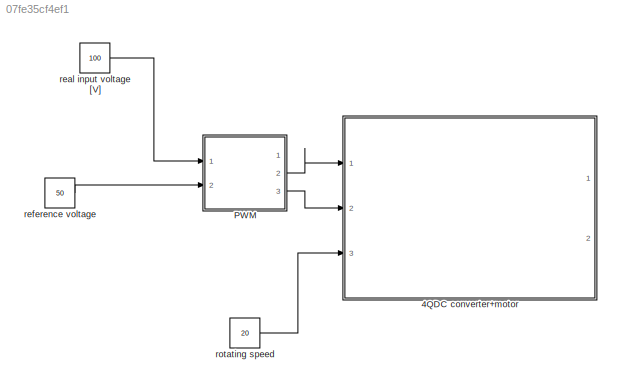
MODEL slx_07fe35cf4ef1
KIND model
CONFIG AbsTol = auto
CONFIG EnableMultiTasking = off
CONFIG FixedStep = auto
CONFIG MaxStep = 1e-5
CONFIG MinStep = auto
CONFIG RelTol = 1e-3
CONFIG SampleTimeConstraint = Unconstrained
CONFIG SolverName = VariableStepAuto
CONFIG StartTime = 0.0
CONFIG StopTime = 10.0
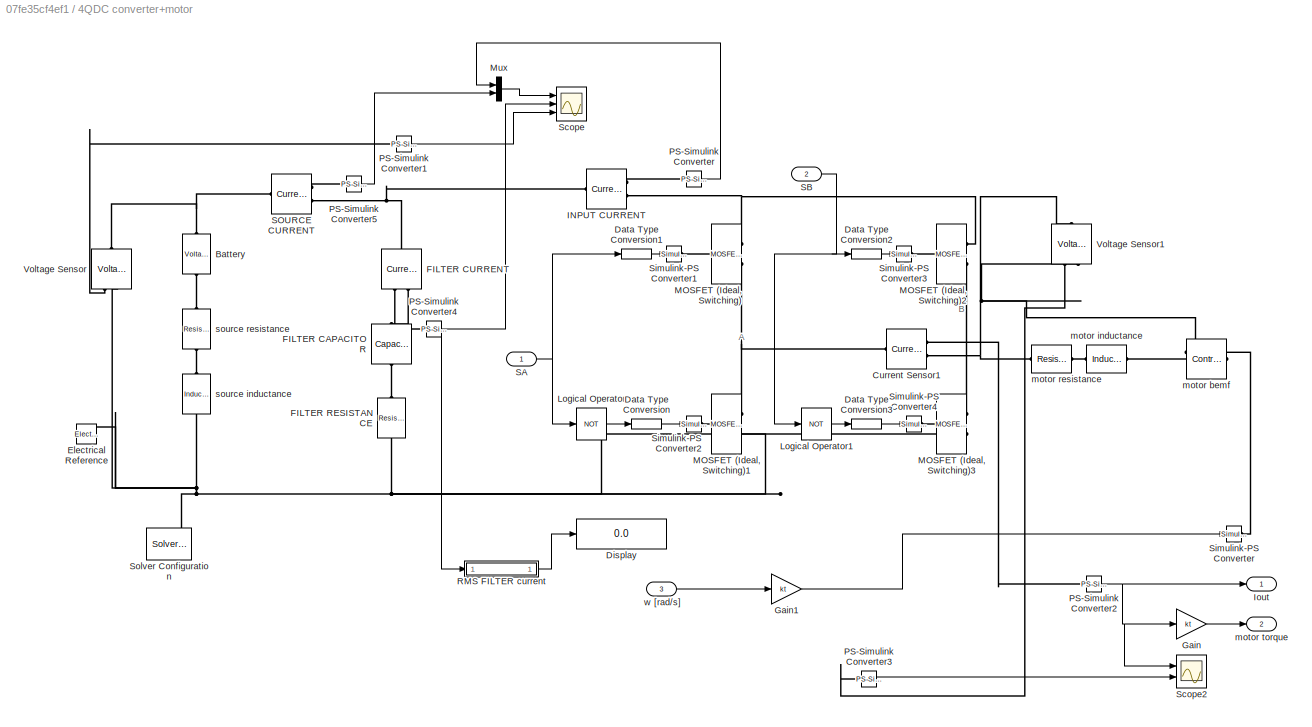
BLOCK [SubSystem] 4QDC converter+motor
  Ports = [3, 2]
  RequestExecContextInheritance = off
BLOCK [Reference] 4QDC converter+motor/Battery  REF=ee_lib/Sources/Voltage Source
  NameLocation = right
  Ports = [0, 0, 0, 0, 0, 1, 1]
  SourceBlock = ee_lib/Sources/Voltage Source
  SourceProductBaseCode = PS
  SourceType = Voltage Source
BLOCK [Reference] 4QDC converter+motor/Current Sensor1  REF=fl_lib/Electrical/Electrical Sensors/Current Sensor
  Ports = [0, 0, 0, 0, 0, 1, 2]
  SourceBlock = fl_lib/Electrical/Electrical Sensors/Current Sensor
  SourceProductBaseCode = SS
  SourceType = Current Sensor
BLOCK [DataTypeConversion] 4QDC converter+motor/Data Type Conversion
  RndMeth = Floor
  SaturateOnIntegerOverflow = off
BLOCK [DataTypeConversion] 4QDC converter+motor/Data Type Conversion1
  RndMeth = Floor
  SaturateOnIntegerOverflow = off
BLOCK [DataTypeConversion] 4QDC converter+motor/Data Type Conversion2
  RndMeth = Floor
  SaturateOnIntegerOverflow = off
BLOCK [DataTypeConversion] 4QDC converter+motor/Data Type Conversion3
  RndMeth = Floor
  SaturateOnIntegerOverflow = off
BLOCK [Display] 4QDC converter+motor/Display
  Decimation = 1
  Ports = [1]
BLOCK [Reference] 4QDC converter+motor/Electrical Reference  REF=fl_lib/Electrical/Electrical Elements/Electrical Reference
  NameLocation = right
  Ports = [0, 0, 0, 0, 0, 1]
  SourceBlock = fl_lib/Electrical/Electrical Elements/Electrical Reference
  SourceProductBaseCode = SS
  SourceType = Electrical Reference
BLOCK [Reference] 4QDC converter+motor/FILTER CAPACITOR  REF=ee_lib/Passive/Capacitor
  NameLocation = left
  Ports = [0, 0, 0, 0, 0, 1, 1]
  SourceBlock = ee_lib/Passive/Capacitor
  SourceProductBaseCode = PS
  SourceType = Capacitor
BLOCK [Reference] 4QDC converter+motor/FILTER CURRENT  REF=fl_lib/Electrical/Electrical Sensors/Current Sensor
  NameLocation = left
  Ports = [0, 0, 0, 0, 0, 1, 2]
  SourceBlock = fl_lib/Electrical/Electrical Sensors/Current Sensor
  SourceProductBaseCode = SS
  SourceType = Current Sensor
BLOCK [Reference] 4QDC converter+motor/FILTER RESISTANCE  REF=ee_lib/Passive/Resistor
  NameLocation = left
  Ports = [0, 0, 0, 0, 0, 1, 1]
  SourceBlock = ee_lib/Passive/Resistor
  SourceProductBaseCode = PS
  SourceType = Resistor
BLOCK [Gain] 4QDC converter+motor/Gain
  Gain = kt
BLOCK [Gain] 4QDC converter+motor/Gain1
  Gain = kt
BLOCK [Reference] 4QDC converter+motor/INPUT CURRENT  REF=fl_lib/Electrical/Electrical Sensors/Current Sensor
  Ports = [0, 0, 0, 0, 0, 1, 2]
  SourceBlock = fl_lib/Electrical/Electrical Sensors/Current Sensor
  SourceProductBaseCode = SS
  SourceType = Current Sensor
BLOCK [Outport] 4QDC converter+motor/Iout
BLOCK [Logic] 4QDC converter+motor/Logical Operator
  AllPortsSameDT = off
  Operator = NOT
  OutDataTypeStr = boolean
  Ports = [1, 1]
BLOCK [Logic] 4QDC converter+motor/Logical Operator1
  AllPortsSameDT = off
  Operator = NOT
  OutDataTypeStr = boolean
  Ports = [1, 1]
BLOCK [Reference] 4QDC converter+motor/MOSFET (Ideal, Switching)  REF=ee_lib/Semiconductors &
Converters/MOSFET
(Ideal,
Switching)
  Ports = [0, 0, 0, 0, 0, 1, 2]
  SourceBlock = ee_lib/Semiconductors &\nConverters/MOSFET\n(Ideal,\nSwitching)
  SourceProductBaseCode = PS
  SourceType = MOSFET\n(Ideal,\nSwitching)
BLOCK [Reference] 4QDC converter+motor/MOSFET (Ideal, Switching)1  REF=ee_lib/Semiconductors &
Converters/MOSFET
(Ideal,
Switching)
  Ports = [0, 0, 0, 0, 0, 1, 2]
  SourceBlock = ee_lib/Semiconductors &\nConverters/MOSFET\n(Ideal,\nSwitching)
  SourceProductBaseCode = PS
  SourceType = MOSFET\n(Ideal,\nSwitching)
BLOCK [Reference] 4QDC converter+motor/MOSFET (Ideal, Switching)2  REF=ee_lib/Semiconductors &
Converters/MOSFET
(Ideal,
Switching)
  Ports = [0, 0, 0, 0, 0, 1, 2]
  SourceBlock = ee_lib/Semiconductors &\nConverters/MOSFET\n(Ideal,\nSwitching)
  SourceProductBaseCode = PS
  SourceType = MOSFET\n(Ideal,\nSwitching)
BLOCK [Reference] 4QDC converter+motor/MOSFET (Ideal, Switching)3  REF=ee_lib/Semiconductors &
Converters/MOSFET
(Ideal,
Switching)
  Ports = [0, 0, 0, 0, 0, 1, 2]
  SourceBlock = ee_lib/Semiconductors &\nConverters/MOSFET\n(Ideal,\nSwitching)
  SourceProductBaseCode = PS
  SourceType = MOSFET\n(Ideal,\nSwitching)
BLOCK [Mux] 4QDC converter+motor/Mux
  DisplayOption = bar
  Inputs = 2
  Ports = [2, 1]
BLOCK [Reference] 4QDC converter+motor/PS-Simulink Converter  REF=nesl_utility/PS-Simulink
Converter
  Ports = [0, 1, 0, 0, 0, 1]
  SourceBlock = nesl_utility/PS-Simulink\nConverter
  SourceProductBaseCode = PW,SS
  SourceType = PS-Simulink\nConverter
BLOCK [Reference] 4QDC converter+motor/PS-Simulink Converter1  REF=nesl_utility/PS-Simulink
Converter
  Ports = [0, 1, 0, 0, 0, 1]
  SourceBlock = nesl_utility/PS-Simulink\nConverter
  SourceProductBaseCode = PW,SS
  SourceType = PS-Simulink\nConverter
BLOCK [Reference] 4QDC converter+motor/PS-Simulink Converter2  REF=nesl_utility/PS-Simulink
Converter
  Ports = [0, 1, 0, 0, 0, 1]
  SourceBlock = nesl_utility/PS-Simulink\nConverter
  SourceProductBaseCode = PW,SS
  SourceType = PS-Simulink\nConverter
BLOCK [Reference] 4QDC converter+motor/PS-Simulink Converter3  REF=nesl_utility/PS-Simulink
Converter
  Ports = [0, 1, 0, 0, 0, 1]
  SourceBlock = nesl_utility/PS-Simulink\nConverter
  SourceProductBaseCode = PW,SS
  SourceType = PS-Simulink\nConverter
BLOCK [Reference] 4QDC converter+motor/PS-Simulink Converter4  REF=nesl_utility/PS-Simulink
Converter
  Ports = [0, 1, 0, 0, 0, 1]
  SourceBlock = nesl_utility/PS-Simulink\nConverter
  SourceProductBaseCode = PW,SS
  SourceType = PS-Simulink\nConverter
BLOCK [Reference] 4QDC converter+motor/PS-Simulink Converter5  REF=nesl_utility/PS-Simulink
Converter
  Ports = [0, 1, 0, 0, 0, 1]
  SourceBlock = nesl_utility/PS-Simulink\nConverter
  SourceProductBaseCode = PW,SS
  SourceType = PS-Simulink\nConverter
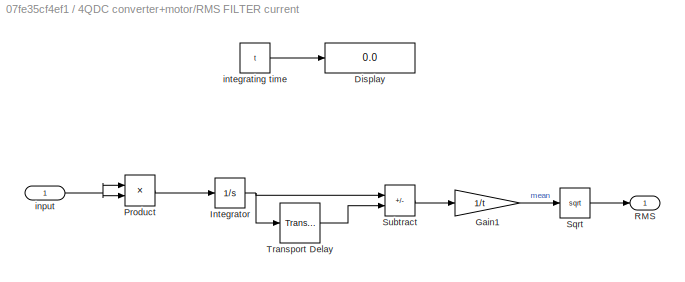
BLOCK [SubSystem] 4QDC converter+motor/RMS FILTER current
  Ports = [1, 1]
  RequestExecContextInheritance = off
BLOCK [Display] 4QDC converter+motor/RMS FILTER current/Display
  Decimation = 1
  Ports = [1]
BLOCK [Gain] 4QDC converter+motor/RMS FILTER current/Gain1
  Gain = 1/t
BLOCK [Integrator] 4QDC converter+motor/RMS FILTER current/Integrator
  Ports = [1, 1]
BLOCK [Product] 4QDC converter+motor/RMS FILTER current/Product
  Ports = [2, 1]
BLOCK [Outport] 4QDC converter+motor/RMS FILTER current/RMS
BLOCK [Sqrt] 4QDC converter+motor/RMS FILTER current/Sqrt
BLOCK [Sum] 4QDC converter+motor/RMS FILTER current/Subtract
  IconShape = rectangular
  Inputs = +-
  Ports = [2, 1]
BLOCK [TransportDelay] 4QDC converter+motor/RMS FILTER current/Transport Delay
  DelayTime = t
  Ports = [1, 1]
BLOCK [Inport] 4QDC converter+motor/RMS FILTER current/input
BLOCK [Constant] 4QDC converter+motor/RMS FILTER current/integrating time
  Value = t
BLOCK [Inport] 4QDC converter+motor/SA
BLOCK [Inport] 4QDC converter+motor/SB
  Port = 2
BLOCK [Reference] 4QDC converter+motor/SOURCE CURRENT  REF=fl_lib/Electrical/Electrical Sensors/Current Sensor
  Ports = [0, 0, 0, 0, 0, 1, 2]
  SourceBlock = fl_lib/Electrical/Electrical Sensors/Current Sensor
  SourceProductBaseCode = SS
  SourceType = Current Sensor
BLOCK [Scope] 4QDC converter+motor/Scope
  Floating = off
  NumInputPorts = 3
  Ports = [3]
  ScopeSpecificationString = Simulink.scopes.TimeScopeBlockCfg('CurrentConfiguration', extmgr.ConfigurationSet(extmgr.Configuration('Core','General UI',true),extmgr.Configuration('Core','Source UI',true),extmgr.Configuration('Sources','WiredSimulink',true),extmgr.Configuration('Visuals','Time Domain',true,'SerializedDisplays',{struct('MinYLimReal','-15.70103','MaxYLimReal','15.70115','YLabelReal','[A]','MinYLimMag','0.00000',...<+3146ch>
BLOCK [Scope] 4QDC converter+motor/Scope2
  Floating = off
  NumInputPorts = 2
  Ports = [2]
  ScopeSpecificationString = Simulink.scopes.TimeScopeBlockCfg('CurrentConfiguration', extmgr.ConfigurationSet(extmgr.Configuration('Core','General UI',true),extmgr.Configuration('Core','Source UI',true),extmgr.Configuration('Sources','WiredSimulink',true,'DataLoggingVariableName','ScopeData2'),extmgr.Configuration('Visuals','Time Domain',true,'SerializedDisplays',{struct('MinYLimReal','-9.5882','MaxYLimReal','19.99219','YLab...<+2182ch>
BLOCK [Reference] 4QDC converter+motor/Simulink-PS Converter  REF=nesl_utility/Simulink-PS
Converter
  Ports = [1, 0, 0, 0, 0, 0, 1]
  SourceBlock = nesl_utility/Simulink-PS\nConverter
  SourceProductBaseCode = PW,SS
  SourceType = Simulink-PS\nConverter
BLOCK [Reference] 4QDC converter+motor/Simulink-PS Converter1  REF=nesl_utility/Simulink-PS
Converter
  Ports = [1, 0, 0, 0, 0, 0, 1]
  SourceBlock = nesl_utility/Simulink-PS\nConverter
  SourceProductBaseCode = PW,SS
  SourceType = Simulink-PS\nConverter
BLOCK [Reference] 4QDC converter+motor/Simulink-PS Converter2  REF=nesl_utility/Simulink-PS
Converter
  Ports = [1, 0, 0, 0, 0, 0, 1]
  SourceBlock = nesl_utility/Simulink-PS\nConverter
  SourceProductBaseCode = PW,SS
  SourceType = Simulink-PS\nConverter
BLOCK [Reference] 4QDC converter+motor/Simulink-PS Converter3  REF=nesl_utility/Simulink-PS
Converter
  Ports = [1, 0, 0, 0, 0, 0, 1]
  SourceBlock = nesl_utility/Simulink-PS\nConverter
  SourceProductBaseCode = PW,SS
  SourceType = Simulink-PS\nConverter
BLOCK [Reference] 4QDC converter+motor/Simulink-PS Converter4  REF=nesl_utility/Simulink-PS
Converter
  Ports = [1, 0, 0, 0, 0, 0, 1]
  SourceBlock = nesl_utility/Simulink-PS\nConverter
  SourceProductBaseCode = PW,SS
  SourceType = Simulink-PS\nConverter
BLOCK [Reference] 4QDC converter+motor/Solver Configuration  REF=nesl_utility/Solver
Configuration
  Ports = [0, 0, 0, 0, 0, 0, 1]
  SourceBlock = nesl_utility/Solver\nConfiguration
  SourceProductBaseCode = PW,SS
  SourceType = Solver\nConfiguration
BLOCK [Reference] 4QDC converter+motor/Voltage Sensor  REF=fl_lib/Electrical/Electrical Sensors/Voltage Sensor
  NameLocation = right
  Ports = [0, 0, 0, 0, 0, 1, 2]
  SourceBlock = fl_lib/Electrical/Electrical Sensors/Voltage Sensor
  SourceProductBaseCode = SS
  SourceType = Voltage Sensor
BLOCK [Reference] 4QDC converter+motor/Voltage Sensor1  REF=fl_lib/Electrical/Electrical Sensors/Voltage Sensor
  NameLocation = right
  Ports = [0, 0, 0, 0, 0, 1, 2]
  SourceBlock = fl_lib/Electrical/Electrical Sensors/Voltage Sensor
  SourceProductBaseCode = SS
  SourceType = Voltage Sensor
BLOCK [Reference] 4QDC converter+motor/motor bemf  REF=fl_lib/Electrical/Electrical Sources/Controlled Voltage
Source
  Ports = [0, 0, 0, 0, 0, 1, 2]
  SourceBlock = fl_lib/Electrical/Electrical Sources/Controlled Voltage\nSource
  SourceProductBaseCode = SS
  SourceType = Controlled Voltage\nSource
BLOCK [Reference] 4QDC converter+motor/motor inductance  REF=ee_lib/Passive/Inductor
  Ports = [0, 0, 0, 0, 0, 1, 1]
  SourceBlock = ee_lib/Passive/Inductor
  SourceProductBaseCode = PS
  SourceType = Inductor
BLOCK [Reference] 4QDC converter+motor/motor resistance   REF=ee_lib/Passive/Resistor
  Ports = [0, 0, 0, 0, 0, 1, 1]
  SourceBlock = ee_lib/Passive/Resistor
  SourceProductBaseCode = PS
  SourceType = Resistor
BLOCK [Outport] 4QDC converter+motor/motor torque
  Port = 2
BLOCK [Reference] 4QDC converter+motor/source inductance  REF=ee_lib/Passive/Inductor
  NameLocation = left
  Ports = [0, 0, 0, 0, 0, 1, 1]
  SourceBlock = ee_lib/Passive/Inductor
  SourceProductBaseCode = PS
  SourceType = Inductor
BLOCK [Reference] 4QDC converter+motor/source resistance  REF=ee_lib/Passive/Resistor
  NameLocation = left
  Ports = [0, 0, 0, 0, 0, 1, 1]
  SourceBlock = ee_lib/Passive/Resistor
  SourceProductBaseCode = PS
  SourceType = Resistor
BLOCK [Inport] 4QDC converter+motor/w [rad//s]
  Port = 3
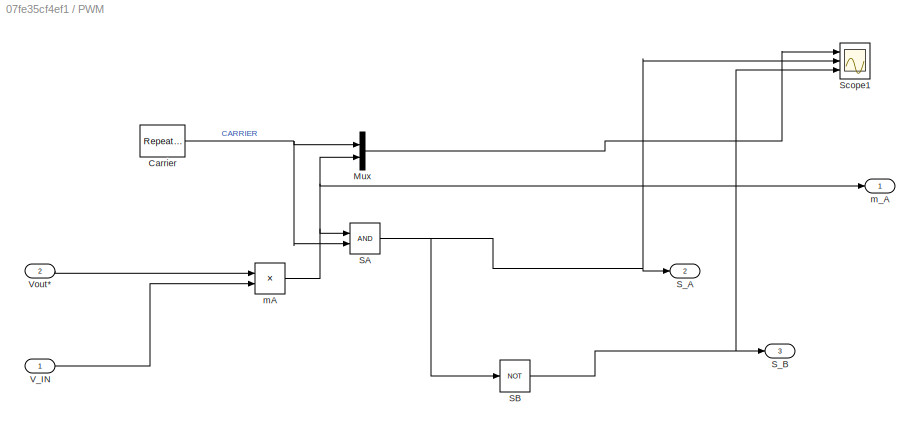
BLOCK [SubSystem] PWM
  Ports = [2, 3]
  RequestExecContextInheritance = off
BLOCK [Reference] PWM/Carrier  REF=simulink/Sources/Repeating
Sequence
  Ports = [0, 1]
  SourceBlock = simulink/Sources/Repeating\nSequence
  SourceProductBaseCode = SL
  SourceType = Repeating table
BLOCK [Mux] PWM/Mux
  DisplayOption = bar
  Inputs = 2
  Ports = [2, 1]
BLOCK [RelationalOperator] PWM/SA
  InputSameDT = off
  OutDataTypeStr = boolean
  Ports = [2, 1]
  RndMeth = Simplest
BLOCK [Logic] PWM/SB
  AllPortsSameDT = off
  Operator = NOT
  OutDataTypeStr = boolean
  Ports = [1, 1]
BLOCK [Outport] PWM/S_A
  Port = 2
BLOCK [Outport] PWM/S_B
  Port = 3
BLOCK [Scope] PWM/Scope1
  Floating = off
  NumInputPorts = 3
  Ports = [3]
  ScopeSpecificationString = Simulink.scopes.TimeScopeBlockCfg('CurrentConfiguration', extmgr.ConfigurationSet(extmgr.Configuration('Core','General UI',true,'FigureColor',[0 0 0]),extmgr.Configuration('Core','Source UI',true),extmgr.Configuration('Sources','WiredSimulink',true,'DataLoggingVariableName','ScopeData1'),extmgr.Configuration('Visuals','Time Domain',true,'SerializedDisplays',{struct('MinYLimReal','-1.23298','MaxYLi...<+3343ch>
BLOCK [Inport] PWM/V_IN
BLOCK [Inport] PWM/Vout*
  Port = 2
BLOCK [Product] PWM/mA
  Inputs = */
  Ports = [2, 1]
BLOCK [Outport] PWM/m_A
BLOCK [Constant] real input voltage [V]
  Value = 100
BLOCK [Constant] reference voltage
  Value = 50
BLOCK [Constant] rotating speed
  Value = 20
ANNOTATION 4QDC converter+motor: A
ANNOTATION 4QDC converter+motor: B
LINE 4QDC converter+motor/Data Type Conversion1:1 -> 4QDC converter+motor/Simulink-PS Converter1:1
LINE 4QDC converter+motor/Data Type Conversion2:1 -> 4QDC converter+motor/Simulink-PS Converter3:1
LINE 4QDC converter+motor/Data Type Conversion3:1 -> 4QDC converter+motor/Simulink-PS Converter4:1
LINE 4QDC converter+motor/Data Type Conversion:1 -> 4QDC converter+motor/Simulink-PS Converter2:1
LINE 4QDC converter+motor/Gain1:1 -> 4QDC converter+motor/Simulink-PS Converter:1
LINE 4QDC converter+motor/Gain:1 -> 4QDC converter+motor/motor torque:1
LINE 4QDC converter+motor/Logical Operator1:1 -> 4QDC converter+motor/Data Type Conversion3:1
LINE 4QDC converter+motor/Logical Operator:1 -> 4QDC converter+motor/Data Type Conversion:1
LINE 4QDC converter+motor/Mux:1 -> 4QDC converter+motor/Scope:1
LINE 4QDC converter+motor/PS-Simulink Converter1:1 -> 4QDC converter+motor/Scope:3
NET 4QDC converter+motor/PS-Simulink Converter2:1 -> 4QDC converter+motor/Gain:1, 4QDC converter+motor/Iout:1, 4QDC converter+motor/Scope2:1
LINE 4QDC converter+motor/PS-Simulink Converter3:1 -> 4QDC converter+motor/Scope2:2
NET 4QDC converter+motor/PS-Simulink Converter4:1 -> 4QDC converter+motor/RMS FILTER current:1, 4QDC converter+motor/Scope:2
LINE 4QDC converter+motor/PS-Simulink Converter5:1 -> 4QDC converter+motor/Mux:2
LINE 4QDC converter+motor/PS-Simulink Converter:1 -> 4QDC converter+motor/Mux:1
LINE 4QDC converter+motor/RMS FILTER current/Gain1:1 -> 4QDC converter+motor/RMS FILTER current/Sqrt:1
NET 4QDC converter+motor/RMS FILTER current/Integrator:1 -> 4QDC converter+motor/RMS FILTER current/Subtract:1, 4QDC converter+motor/RMS FILTER current/Transport Delay:1
LINE 4QDC converter+motor/RMS FILTER current/Product:1 -> 4QDC converter+motor/RMS FILTER current/Integrator:1
LINE 4QDC converter+motor/RMS FILTER current/Sqrt:1 -> 4QDC converter+motor/RMS FILTER current/RMS:1
LINE 4QDC converter+motor/RMS FILTER current/Subtract:1 -> 4QDC converter+motor/RMS FILTER current/Gain1:1
LINE 4QDC converter+motor/RMS FILTER current/Transport Delay:1 -> 4QDC converter+motor/RMS FILTER current/Subtract:2
NET 4QDC converter+motor/RMS FILTER current/input:1 -> 4QDC converter+motor/RMS FILTER current/Product:1, 4QDC converter+motor/RMS FILTER current/Product:2
LINE 4QDC converter+motor/RMS FILTER current/integrating time:1 -> 4QDC converter+motor/RMS FILTER current/Display:1
LINE 4QDC converter+motor/RMS FILTER current:1 -> 4QDC converter+motor/Display:1
NET 4QDC converter+motor/SA:1 -> 4QDC converter+motor/Data Type Conversion1:1, 4QDC converter+motor/Logical Operator:1
NET 4QDC converter+motor/SB:1 -> 4QDC converter+motor/Data Type Conversion2:1, 4QDC converter+motor/Logical Operator1:1
LINE 4QDC converter+motor/w [rad//s]:1 -> 4QDC converter+motor/Gain1:1
NET PWM/Carrier:1 -> PWM/Mux:1, PWM/SA:2
LINE PWM/Mux:1 -> PWM/Scope1:1
NET PWM/SA:1 -> PWM/SB:1, PWM/S_A:1, PWM/Scope1:2
NET PWM/SB:1 -> PWM/S_B:1, PWM/Scope1:3
LINE PWM/V_IN:1 -> PWM/mA:2
LINE PWM/Vout*:1 -> PWM/mA:1
NET PWM/mA:1 -> PWM/Mux:2, PWM/SA:1, PWM/m_A:1
LINE PWM:2 -> 4QDC converter+motor:1
LINE PWM:3 -> 4QDC converter+motor:2
LINE real input voltage [V]:1 -> PWM:1
LINE reference voltage:1 -> PWM:2
LINE rotating speed:1 -> 4QDC converter+motor:3
PNET net1: 4QDC converter+motor/Battery:LConn1 -- 4QDC converter+motor/SOURCE CURRENT:LConn1 -- 4QDC converter+motor/Voltage Sensor:LConn1
PLINE 4QDC converter+motor/Battery:RConn1 -- 4QDC converter+motor/source resistance:LConn1
PNET net2: 4QDC converter+motor/Current Sensor1:LConn1 -- 4QDC converter+motor/MOSFET (Ideal, Switching)1:RConn1 -- 4QDC converter+motor/MOSFET (Ideal, Switching):RConn2
PLINE 4QDC converter+motor/Current Sensor1:RConn1 -- 4QDC converter+motor/PS-Simulink Converter2:LConn1
PNET net3: 4QDC converter+motor/Current Sensor1:RConn2 -- 4QDC converter+motor/Voltage Sensor1:LConn1 -- 4QDC converter+motor/motor resistance :LConn1
PNET net4: 4QDC converter+motor/Electrical Reference:LConn1 -- 4QDC converter+motor/FILTER RESISTANCE:RConn1 -- 4QDC converter+motor/MOSFET (Ideal, Switching)1:RConn2 -- 4QDC converter+motor/MOSFET (Ideal, Switching)3:RConn2 -- 4QDC converter+motor/Solver Configuration:RConn1 -- 4QDC converter+motor/Voltage Sensor:RConn2 -- 4QDC converter+motor/source inductance:RConn1
PLINE 4QDC converter+motor/FILTER CAPACITOR:LConn1 -- 4QDC converter+motor/FILTER CURRENT:RConn2
PLINE 4QDC converter+motor/FILTER CAPACITOR:RConn1 -- 4QDC converter+motor/FILTER RESISTANCE:LConn1
PNET net5: 4QDC converter+motor/FILTER CURRENT:LConn1 -- 4QDC converter+motor/INPUT CURRENT:LConn1 -- 4QDC converter+motor/SOURCE CURRENT:RConn2
PLINE 4QDC converter+motor/FILTER CURRENT:RConn1 -- 4QDC converter+motor/PS-Simulink Converter4:LConn1
PLINE 4QDC converter+motor/INPUT CURRENT:RConn1 -- 4QDC converter+motor/PS-Simulink Converter:LConn1
PNET net6: 4QDC converter+motor/INPUT CURRENT:RConn2 -- 4QDC converter+motor/MOSFET (Ideal, Switching)2:RConn1 -- 4QDC converter+motor/MOSFET (Ideal, Switching):RConn1
PLINE 4QDC converter+motor/MOSFET (Ideal, Switching)1:LConn1 -- 4QDC converter+motor/Simulink-PS Converter2:RConn1
PLINE 4QDC converter+motor/MOSFET (Ideal, Switching)2:LConn1 -- 4QDC converter+motor/Simulink-PS Converter3:RConn1
PNET net7: 4QDC converter+motor/MOSFET (Ideal, Switching)2:RConn2 -- 4QDC converter+motor/MOSFET (Ideal, Switching)3:RConn1 -- 4QDC converter+motor/Voltage Sensor1:RConn2 -- 4QDC converter+motor/motor bemf:RConn2
PLINE 4QDC converter+motor/MOSFET (Ideal, Switching)3:LConn1 -- 4QDC converter+motor/Simulink-PS Converter4:RConn1
PLINE 4QDC converter+motor/MOSFET (Ideal, Switching):LConn1 -- 4QDC converter+motor/Simulink-PS Converter1:RConn1
PLINE 4QDC converter+motor/PS-Simulink Converter1:LConn1 -- 4QDC converter+motor/Voltage Sensor:RConn1
PLINE 4QDC converter+motor/PS-Simulink Converter3:LConn1 -- 4QDC converter+motor/Voltage Sensor1:RConn1
PLINE 4QDC converter+motor/PS-Simulink Converter5:LConn1 -- 4QDC converter+motor/SOURCE CURRENT:RConn1
PLINE 4QDC converter+motor/Simulink-PS Converter:RConn1 -- 4QDC converter+motor/motor bemf:RConn1
PLINE 4QDC converter+motor/motor bemf:LConn1 -- 4QDC converter+motor/motor inductance:RConn1
PLINE 4QDC converter+motor/motor inductance:LConn1 -- 4QDC converter+motor/motor resistance :RConn1
PLINE 4QDC converter+motor/source inductance:LConn1 -- 4QDC converter+motor/source resistance:RConn1
note: NET lines group one-source signal fan-out (src -> all destinations, sorted); 1:1 wires keep LINE; PNET lines group multi-terminal physical nets as a canonical sorted terminal list (undirected conserving connections); 2-terminal nets keep the pairwise PLINE form
